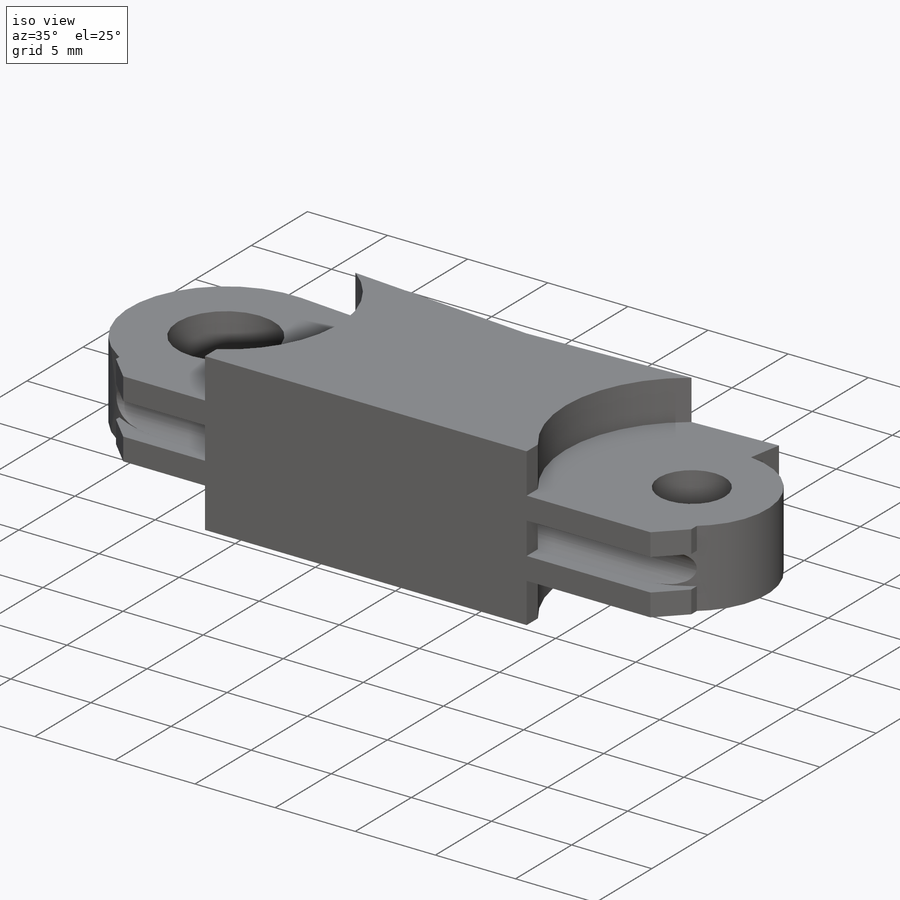
[diagram: iso view]
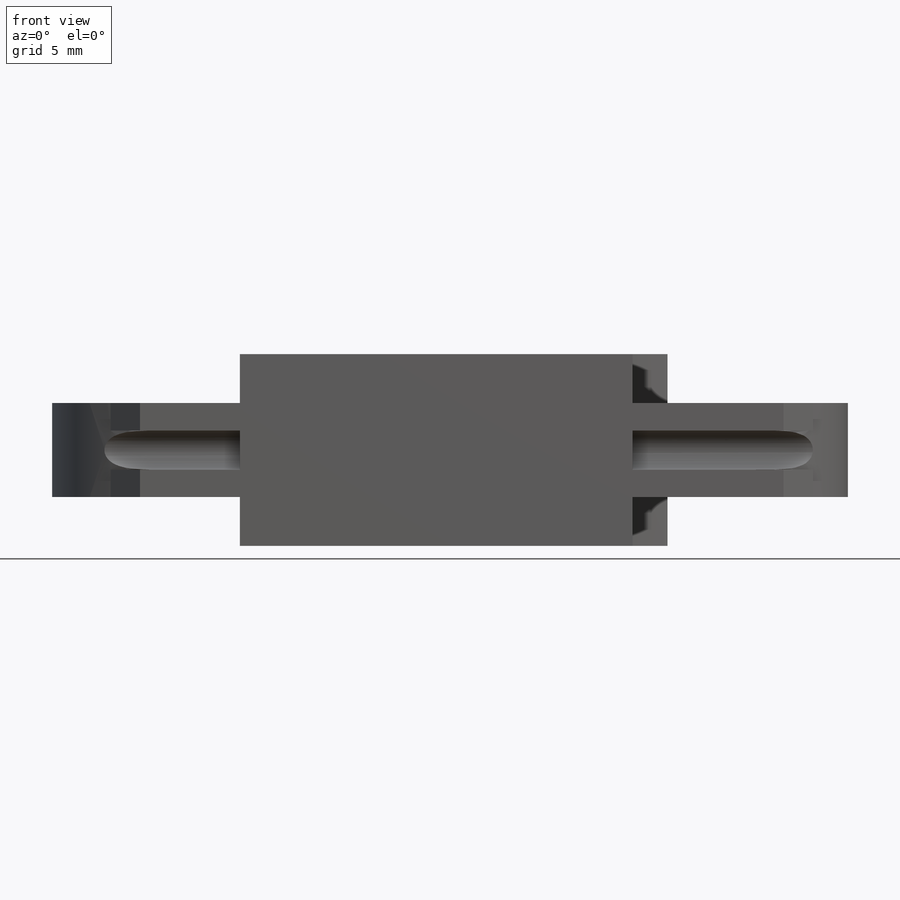
[diagram: front view]
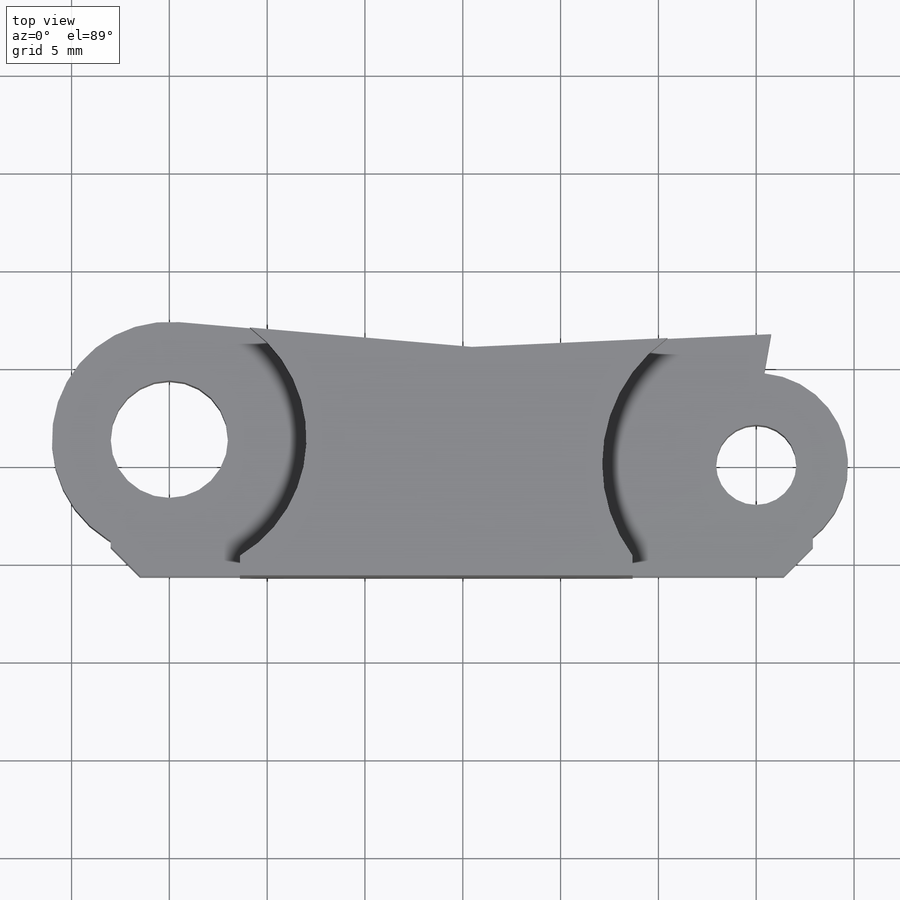
[diagram: top view]
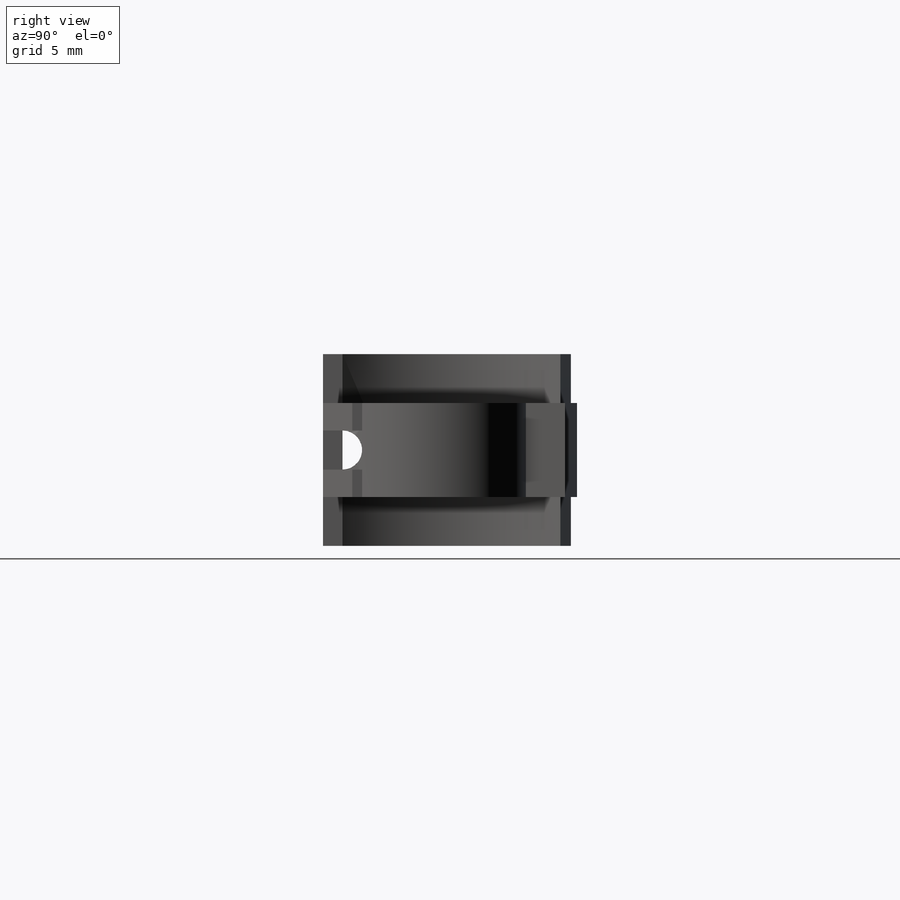
[diagram: right view]
SOLIDWORKS PART (.sldprt)
format: sldprt  version: not decoded by parser v0  size: 288,768 bytes
history: native  units: mm
features: sketch x6, extrude x5, mirror x2, material x1, cut_extrude x1, chamfer x1 (+13 scaffold rows collapsed)
feature tree (29):
  scaffold x13  (default folders/planes/origin — collapsed)
  material  "Material <not specified>"
  sketch  "Sketch2"  dims[c1.D1=4.1mm c1.D2=~5.921293mm c1.D4=7.0mm c1.D5=7.0mm c2.D4=6.0mm c2.D2=3.0mm c2.D3=30.0mm c3.D2=12.0mm c3.D5=15.0mm c4.D5=5.0deg c4.D6=2.0mm c4.D7=3.0mm c5.D7=95.0deg]
  extrude  "Boss-Extrude1"  Depth=2.4mm
  sketch  "Sketch10"  dims[c1.D1=~9.608258mm c1.D3=~7.807595mm c2.D1=~1.808926mm c2.D2=1.0mm c3.D1=1.0mm c3.D3=10.0mm]
  extrude  "Boss-Extrude3"  Depth=2.5mm
  mirror  "Mirror1"
  sketch  "Sketch11"
  extrude  "Boss-Extrude4"  [1 undecoded]
  sketch  "Sketch13"  dims[D1=2.0mm D2=~1.150977mm D3=2.0mm]
  cut_extrude  "Cut-Extrude1"  [1 undecoded]
  sketch  "Sketch14"  dims[D1=3.0mm]
  extrude  "Boss-Extrude5"  [1 undecoded]
  sketch  "Sketch16"
  extrude  "Boss-Extrude6"  [1 undecoded]
  chamfer  "Chamfer1"  Distance=1.5mm Angle=45deg
  mirror  "Mirror2"
decode coverage: 7 of 15 modeling features carry decoded parameters
note: ~ marks probable driven/reference dimensions
note: 4 parameter values undecoded
summary: no parameter record found for 4 features
note: suppression state not decoded; provenance and decode notes live in map.json
